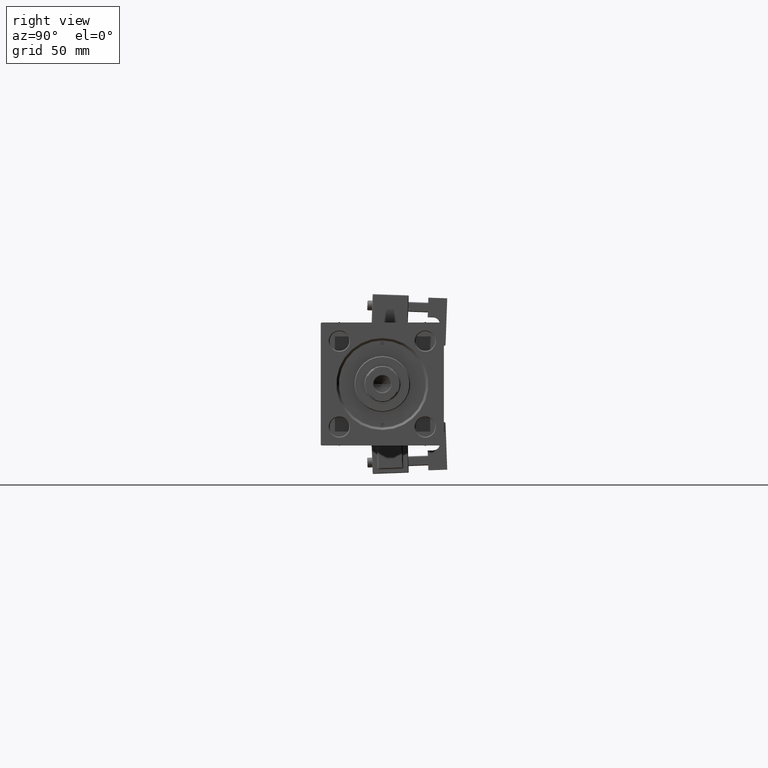
[diagram: clean part render]
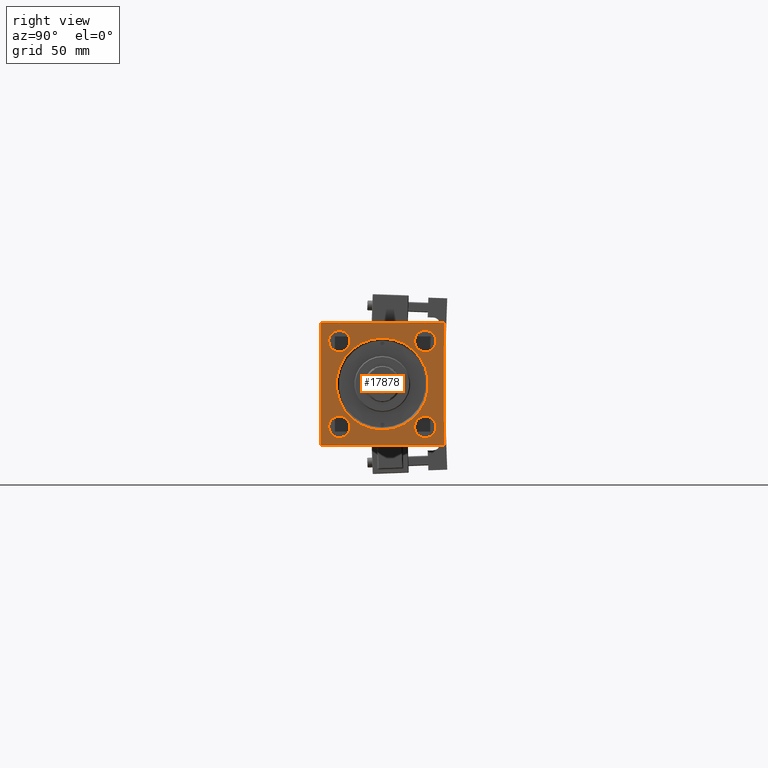
[diagram: same view with one face highlighted and labeled with its STEP entity id]
A machine part, right view. The second image highlights one B-rep face of the part: STEP entity #17878.
In plain terms, the highlighted planar face has unit normal (-1, 0, 0).
Its self-contained STEP definition (entity closure, byte-faithful):
#148 = CIRCLE ( 'NONE', #27299, 6.499999999999946709 ) ;
#195 = CARTESIAN_POINT ( 'NONE',  ( 383.9999999999999432, -37.50000000000000000, 37.49999999999997868 ) ) ;
#504 = ORIENTED_EDGE ( 'NONE', *, *, #29771, .T. ) ;
#516 = CARTESIAN_POINT ( 'NONE',  ( 383.9999999999999432, 36.99999999999994316, -37.50000000000000000 ) ) ;
#666 = AXIS2_PLACEMENT_3D ( 'NONE', #51405, #3043, #15535 ) ;
#1046 = EDGE_CURVE ( 'NONE', #44581, #13923, #46148, .T. ) ;
#1187 = CARTESIAN_POINT ( 'NONE',  ( 383.9999999999999432, 37.50000000000000000, -36.99999999999993605 ) ) ;
#1290 = VERTEX_POINT ( 'NONE', #26692 ) ;
#1730 = DIRECTION ( 'NONE',  ( 0.000000000000000000, 0.000000000000000000, 1.000000000000000000 ) ) ;
#1748 = VERTEX_POINT ( 'NONE', #41983 ) ;
#1860 = DIRECTION ( 'NONE',  ( 0.000000000000000000, 0.000000000000000000, 1.000000000000000000 ) ) ;
#2016 = ORIENTED_EDGE ( 'NONE', *, *, #43264, .F. ) ;
#2176 = CARTESIAN_POINT ( 'NONE',  ( 383.9999999999999432, 26.14999999999999858, 19.65000000000004832 ) ) ;
#2509 = VERTEX_POINT ( 'NONE', #50553 ) ;
#2579 = VERTEX_POINT ( 'NONE', #35148 ) ;
#3043 = DIRECTION ( 'NONE',  ( -1.000000000000000000, -0.000000000000000000, 0.000000000000000000 ) ) ;
#3583 = EDGE_CURVE ( 'NONE', #23346, #9143, #51875, .T. ) ;
#3774 = DIRECTION ( 'NONE',  ( -0.000000000000000000, -0.7071067811865867636, -0.7071067811865081598 ) ) ;
#3932 = EDGE_CURVE ( 'NONE', #14850, #51259, #23047, .T. ) ;
#4521 = AXIS2_PLACEMENT_3D ( 'NONE', #6703, #30627, #38871 ) ;
#4596 = EDGE_CURVE ( 'NONE', #28560, #42371, #12635, .T. ) ;
#5187 = CARTESIAN_POINT ( 'NONE',  ( 383.9999999999999432, -26.15000000000000213, -32.64999999999995595 ) ) ;
#5592 = CARTESIAN_POINT ( 'NONE',  ( 383.9999999999999432, 0.000000000000000000, 0.000000000000000000 ) ) ;
#5862 = CARTESIAN_POINT ( 'NONE',  ( 383.9999999999999432, 26.14999999999999858, 32.64999999999995595 ) ) ;
#5886 = EDGE_LOOP ( 'NONE', ( #45574, #14901, #2016, #9460, #46703, #31866, #28079, #21281 ) ) ;
#6437 = DIRECTION ( 'NONE',  ( 0.000000000000000000, 0.7071067811865474617, -0.7071067811865474617 ) ) ;
#6451 = CARTESIAN_POINT ( 'NONE',  ( 383.9999999999999432, -36.99999999999988631, 37.49999999999997868 ) ) ;
#6703 = CARTESIAN_POINT ( 'NONE',  ( 383.9999999999999432, 0.000000000000000000, 0.000000000000000000 ) ) ;
#7794 = FACE_BOUND ( 'NONE', #51792, .T. ) ;
#8066 = CARTESIAN_POINT ( 'NONE',  ( 383.9999999999999432, 0.000000000000000000, 0.000000000000000000 ) ) ;
#8243 = DIRECTION ( 'NONE',  ( -1.000000000000000000, -0.000000000000000000, 0.000000000000000000 ) ) ;
#8906 = EDGE_CURVE ( 'NONE', #2579, #43454, #51741, .T. ) ;
#8983 = ORIENTED_EDGE ( 'NONE', *, *, #43586, .T. ) ;
#9143 = VERTEX_POINT ( 'NONE', #14357 ) ;
#9460 = ORIENTED_EDGE ( 'NONE', *, *, #1046, .T. ) ;
#9551 = LINE ( 'NONE', #17783, #21133 ) ;
#11555 = EDGE_CURVE ( 'NONE', #11832, #1290, #31906, .T. ) ;
#11832 = VERTEX_POINT ( 'NONE', #28634 ) ;
#12039 = PLANE ( 'NONE',  #28180 ) ;
#12635 = CIRCLE ( 'NONE', #28613, 6.499999999999953815 ) ;
#12694 = CARTESIAN_POINT ( 'NONE',  ( 383.9999999999999432, 37.50000000000000000, 37.49999999999999289 ) ) ;
#13440 = ORIENTED_EDGE ( 'NONE', *, *, #8906, .T. ) ;
#13466 = VERTEX_POINT ( 'NONE', #41142 ) ;
#13923 = VERTEX_POINT ( 'NONE', #1187 ) ;
#13953 = DIRECTION ( 'NONE',  ( -1.000000000000000000, -0.000000000000000000, 0.000000000000000000 ) ) ;
#14246 = DIRECTION ( 'NONE',  ( -0.000000000000000000, 0.7071067811865426878, 0.7071067811865524577 ) ) ;
#14357 = CARTESIAN_POINT ( 'NONE',  ( 383.9999999999999432, -36.99999999999990052, -37.50000000000000000 ) ) ;
#14673 = CARTESIAN_POINT ( 'NONE',  ( 383.9999999999999432, -36.99999999999990052, -37.50000000000000000 ) ) ;
#14850 = VERTEX_POINT ( 'NONE', #46489 ) ;
#14901 = ORIENTED_EDGE ( 'NONE', *, *, #3583, .T. ) ;
#14926 = AXIS2_PLACEMENT_3D ( 'NONE', #29237, #48477, #41980 ) ;
#15241 = FACE_BOUND ( 'NONE', #22040, .T. ) ;
#15535 = DIRECTION ( 'NONE',  ( 0.000000000000000000, 0.000000000000000000, 1.000000000000000000 ) ) ;
#15557 = VECTOR ( 'NONE', #14246, 1000.000000000000000 ) ;
#16478 = DIRECTION ( 'NONE',  ( -1.000000000000000000, -0.000000000000000000, 0.000000000000000000 ) ) ;
#16517 = LINE ( 'NONE', #48137, #38760 ) ;
#16527 = VERTEX_POINT ( 'NONE', #6451 ) ;
#17120 = EDGE_CURVE ( 'NONE', #21200, #13466, #148, .T. ) ;
#17618 = CARTESIAN_POINT ( 'NONE',  ( 383.9999999999999432, 26.14999999999999858, -32.64999999999995595 ) ) ;
#17783 = CARTESIAN_POINT ( 'NONE',  ( 383.9999999999999432, 37.50000000000000000, 37.49999999999999289 ) ) ;
#17878 = ADVANCED_FACE ( 'NONE', ( #15241, #44470, #7794, #24273, #24009, #19224 ), #12039, .F. ) ;
#19224 = FACE_OUTER_BOUND ( 'NONE', #5886, .T. ) ;
#19819 = LINE ( 'NONE', #36034, #43209 ) ;
#19832 = ORIENTED_EDGE ( 'NONE', *, *, #37215, .T. ) ;
#19844 = VERTEX_POINT ( 'NONE', #5187 ) ;
#20275 = DIRECTION ( 'NONE',  ( 0.000000000000000000, 0.000000000000000000, 1.000000000000000000 ) ) ;
#20308 = EDGE_CURVE ( 'NONE', #43454, #2579, #41855, .T. ) ;
#21133 = VECTOR ( 'NONE', #45951, 1000.000000000000000 ) ;
#21200 = VERTEX_POINT ( 'NONE', #43239 ) ;
#21281 = ORIENTED_EDGE ( 'NONE', *, *, #34016, .T. ) ;
#21366 = DIRECTION ( 'NONE',  ( 0.000000000000000000, -1.000000000000000000, 0.000000000000000000 ) ) ;
#21396 = CARTESIAN_POINT ( 'NONE',  ( 383.9999999999999432, -26.14999999999999147, 26.14999999999999503 ) ) ;
#21518 = AXIS2_PLACEMENT_3D ( 'NONE', #35876, #16478, #23921 ) ;
#21696 = DIRECTION ( 'NONE',  ( 0.000000000000000000, -1.000000000000000000, -1.850371707708594316E-16 ) ) ;
#21890 = EDGE_CURVE ( 'NONE', #42371, #28560, #33399, .T. ) ;
#22040 = EDGE_LOOP ( 'NONE', ( #40127, #25478 ) ) ;
#22052 = CARTESIAN_POINT ( 'NONE',  ( 383.9999999999999432, 26.14999999999999858, -26.15000000000000213 ) ) ;
#22273 = EDGE_CURVE ( 'NONE', #1748, #23346, #49598, .T. ) ;
#22301 = CARTESIAN_POINT ( 'NONE',  ( 383.9999999999999432, 0.000000000000000000, -27.99999999999996803 ) ) ;
#23047 = CIRCLE ( 'NONE', #37449, 6.499999999999953815 ) ;
#23346 = VERTEX_POINT ( 'NONE', #51134 ) ;
#23921 = DIRECTION ( 'NONE',  ( 0.000000000000000000, 0.000000000000000000, 1.000000000000000000 ) ) ;
#24009 = FACE_BOUND ( 'NONE', #45926, .T. ) ;
#24273 = FACE_BOUND ( 'NONE', #41456, .T. ) ;
#24455 = DIRECTION ( 'NONE',  ( 0.000000000000000000, 0.000000000000000000, 1.000000000000000000 ) ) ;
#25478 = ORIENTED_EDGE ( 'NONE', *, *, #21890, .T. ) ;
#25683 = CARTESIAN_POINT ( 'NONE',  ( 383.9999999999999432, 37.50000000000000000, -36.99999999999993605 ) ) ;
#25687 = LINE ( 'NONE', #12694, #31613 ) ;
#26692 = CARTESIAN_POINT ( 'NONE',  ( 383.9999999999999432, 36.99999999999994316, 37.49999999999999289 ) ) ;
#27299 = AXIS2_PLACEMENT_3D ( 'NONE', #44654, #8243, #24455 ) ;
#27484 = EDGE_CURVE ( 'NONE', #13466, #21200, #38565, .T. ) ;
#28079 = ORIENTED_EDGE ( 'NONE', *, *, #50216, .T. ) ;
#28180 = AXIS2_PLACEMENT_3D ( 'NONE', #8066, #40481, #20275 ) ;
#28560 = VERTEX_POINT ( 'NONE', #2176 ) ;
#28613 = AXIS2_PLACEMENT_3D ( 'NONE', #30363, #51356, #46313 ) ;
#28634 = CARTESIAN_POINT ( 'NONE',  ( 383.9999999999999432, 37.50000000000000000, 36.99999999999993605 ) ) ;
#28837 = AXIS2_PLACEMENT_3D ( 'NONE', #5592, #50244, #37756 ) ;
#29237 = CARTESIAN_POINT ( 'NONE',  ( 383.9999999999999432, -26.15000000000000213, -26.15000000000000213 ) ) ;
#29771 = EDGE_CURVE ( 'NONE', #19844, #2509, #38676, .T. ) ;
#30363 = CARTESIAN_POINT ( 'NONE',  ( 383.9999999999999432, 26.14999999999999858, 26.15000000000000213 ) ) ;
#30627 = DIRECTION ( 'NONE',  ( -1.000000000000000000, -0.000000000000000000, 0.000000000000000000 ) ) ;
#31060 = DIRECTION ( 'NONE',  ( 0.000000000000000000, 0.000000000000000000, 1.000000000000000000 ) ) ;
#31394 = VECTOR ( 'NONE', #6437, 1000.000000000000114 ) ;
#31613 = VECTOR ( 'NONE', #21696, 1000.000000000000000 ) ;
#31725 = ORIENTED_EDGE ( 'NONE', *, *, #20308, .T. ) ;
#31866 = ORIENTED_EDGE ( 'NONE', *, *, #11555, .T. ) ;
#31906 = LINE ( 'NONE', #44906, #47449 ) ;
#33399 = CIRCLE ( 'NONE', #21518, 6.499999999999953815 ) ;
#33868 = AXIS2_PLACEMENT_3D ( 'NONE', #35840, #51264, #31060 ) ;
#34016 = EDGE_CURVE ( 'NONE', #16527, #1748, #16517, .T. ) ;
#35046 = VECTOR ( 'NONE', #41113, 1000.000000000000000 ) ;
#35148 = CARTESIAN_POINT ( 'NONE',  ( 383.9999999999999432, 3.429011037612585332E-15, 27.99999999999996803 ) ) ;
#35351 = ORIENTED_EDGE ( 'NONE', *, *, #17120, .T. ) ;
#35840 = CARTESIAN_POINT ( 'NONE',  ( 383.9999999999999432, -26.15000000000000213, -26.15000000000000213 ) ) ;
#35876 = CARTESIAN_POINT ( 'NONE',  ( 383.9999999999999432, 26.14999999999999858, 26.15000000000000213 ) ) ;
#36034 = CARTESIAN_POINT ( 'NONE',  ( 383.9999999999999432, 37.50000000000000000, -37.50000000000000000 ) ) ;
#37215 = EDGE_CURVE ( 'NONE', #51259, #14850, #48210, .T. ) ;
#37449 = AXIS2_PLACEMENT_3D ( 'NONE', #22052, #38270, #1860 ) ;
#37756 = DIRECTION ( 'NONE',  ( 0.000000000000000000, 0.000000000000000000, 1.000000000000000000 ) ) ;
#38270 = DIRECTION ( 'NONE',  ( -1.000000000000000000, -0.000000000000000000, 0.000000000000000000 ) ) ;
#38565 = CIRCLE ( 'NONE', #41966, 6.499999999999946709 ) ;
#38676 = CIRCLE ( 'NONE', #14926, 6.499999999999953815 ) ;
#38760 = VECTOR ( 'NONE', #3774, 1000.000000000000000 ) ;
#38871 = DIRECTION ( 'NONE',  ( 0.000000000000000000, 0.000000000000000000, 1.000000000000000000 ) ) ;
#39821 = CIRCLE ( 'NONE', #33868, 6.499999999999953815 ) ;
#40127 = ORIENTED_EDGE ( 'NONE', *, *, #4596, .T. ) ;
#40481 = DIRECTION ( 'NONE',  ( -1.000000000000000000, -0.000000000000000000, 0.000000000000000000 ) ) ;
#41113 = DIRECTION ( 'NONE',  ( 0.000000000000000000, -9.251858538542972814E-17, -1.000000000000000000 ) ) ;
#41142 = CARTESIAN_POINT ( 'NONE',  ( 383.9999999999999432, -26.14999999999999147, 19.65000000000004832 ) ) ;
#41445 = ORIENTED_EDGE ( 'NONE', *, *, #3932, .T. ) ;
#41456 = EDGE_LOOP ( 'NONE', ( #19832, #41445 ) ) ;
#41855 = CIRCLE ( 'NONE', #4521, 27.99999999999996803 ) ;
#41966 = AXIS2_PLACEMENT_3D ( 'NONE', #21396, #13953, #1730 ) ;
#41980 = DIRECTION ( 'NONE',  ( 0.000000000000000000, 0.000000000000000000, 1.000000000000000000 ) ) ;
#41983 = CARTESIAN_POINT ( 'NONE',  ( 383.9999999999999432, -37.50000000000000000, 36.99999999999992184 ) ) ;
#42031 = ORIENTED_EDGE ( 'NONE', *, *, #27484, .T. ) ;
#42371 = VERTEX_POINT ( 'NONE', #5862 ) ;
#43209 = VECTOR ( 'NONE', #21366, 1000.000000000000000 ) ;
#43239 = CARTESIAN_POINT ( 'NONE',  ( 383.9999999999999432, -26.14999999999999147, 32.64999999999994174 ) ) ;
#43264 = EDGE_CURVE ( 'NONE', #44581, #9143, #19819, .T. ) ;
#43400 = EDGE_CURVE ( 'NONE', #11832, #13923, #9551, .T. ) ;
#43454 = VERTEX_POINT ( 'NONE', #22301 ) ;
#43586 = EDGE_CURVE ( 'NONE', #2509, #19844, #39821, .T. ) ;
#44470 = FACE_BOUND ( 'NONE', #48129, .T. ) ;
#44581 = VERTEX_POINT ( 'NONE', #516 ) ;
#44654 = CARTESIAN_POINT ( 'NONE',  ( 383.9999999999999432, -26.14999999999999147, 26.14999999999999503 ) ) ;
#44906 = CARTESIAN_POINT ( 'NONE',  ( 383.9999999999999432, 36.99999999999994316, 37.49999999999999289 ) ) ;
#45574 = ORIENTED_EDGE ( 'NONE', *, *, #22273, .T. ) ;
#45926 = EDGE_LOOP ( 'NONE', ( #31725, #13440 ) ) ;
#45951 = DIRECTION ( 'NONE',  ( 0.000000000000000000, 0.000000000000000000, -1.000000000000000000 ) ) ;
#46148 = LINE ( 'NONE', #25683, #15557 ) ;
#46313 = DIRECTION ( 'NONE',  ( 0.000000000000000000, 0.000000000000000000, 1.000000000000000000 ) ) ;
#46489 = CARTESIAN_POINT ( 'NONE',  ( 383.9999999999999432, 26.14999999999999858, -19.65000000000005187 ) ) ;
#46703 = ORIENTED_EDGE ( 'NONE', *, *, #43400, .F. ) ;
#47449 = VECTOR ( 'NONE', #49152, 1000.000000000000114 ) ;
#48129 = EDGE_LOOP ( 'NONE', ( #42031, #35351 ) ) ;
#48137 = CARTESIAN_POINT ( 'NONE',  ( 383.9999999999999432, -37.50000000000000000, 36.99999999999992184 ) ) ;
#48210 = CIRCLE ( 'NONE', #666, 6.499999999999953815 ) ;
#48477 = DIRECTION ( 'NONE',  ( -1.000000000000000000, -0.000000000000000000, 0.000000000000000000 ) ) ;
#49152 = DIRECTION ( 'NONE',  ( 0.000000000000000000, -0.7071067811865474617, 0.7071067811865474617 ) ) ;
#49598 = LINE ( 'NONE', #195, #35046 ) ;
#50216 = EDGE_CURVE ( 'NONE', #1290, #16527, #25687, .T. ) ;
#50244 = DIRECTION ( 'NONE',  ( -1.000000000000000000, -0.000000000000000000, 0.000000000000000000 ) ) ;
#50553 = CARTESIAN_POINT ( 'NONE',  ( 383.9999999999999432, -26.15000000000000213, -19.65000000000005187 ) ) ;
#51134 = CARTESIAN_POINT ( 'NONE',  ( 383.9999999999999432, -37.50000000000000711, -36.99999999999989342 ) ) ;
#51259 = VERTEX_POINT ( 'NONE', #17618 ) ;
#51264 = DIRECTION ( 'NONE',  ( -1.000000000000000000, -0.000000000000000000, 0.000000000000000000 ) ) ;
#51356 = DIRECTION ( 'NONE',  ( -1.000000000000000000, -0.000000000000000000, 0.000000000000000000 ) ) ;
#51405 = CARTESIAN_POINT ( 'NONE',  ( 383.9999999999999432, 26.14999999999999858, -26.15000000000000213 ) ) ;
#51741 = CIRCLE ( 'NONE', #28837, 27.99999999999996803 ) ;
#51792 = EDGE_LOOP ( 'NONE', ( #504, #8983 ) ) ;
#51875 = LINE ( 'NONE', #14673, #31394 ) ;